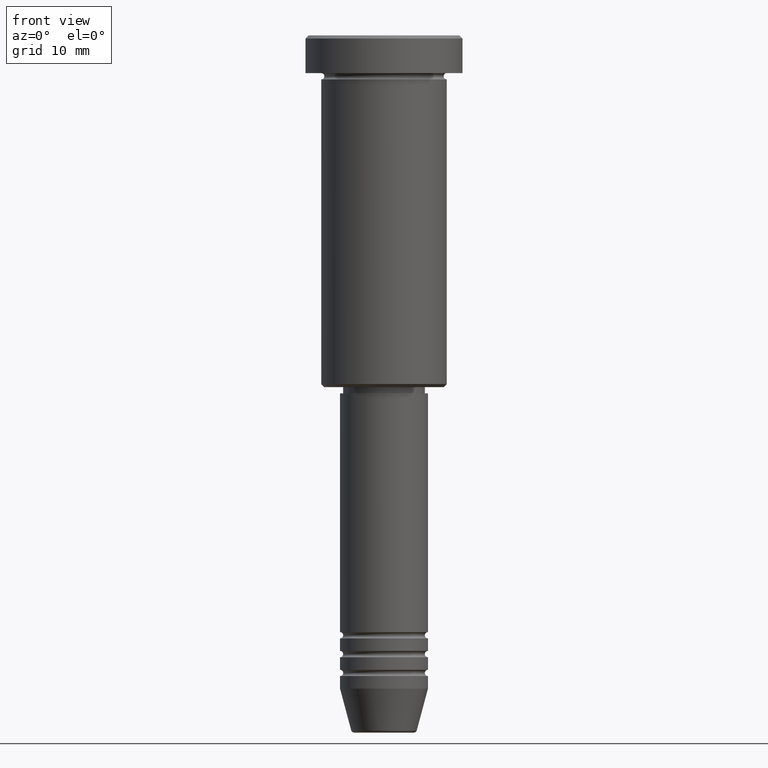
[diagram: clean part render]
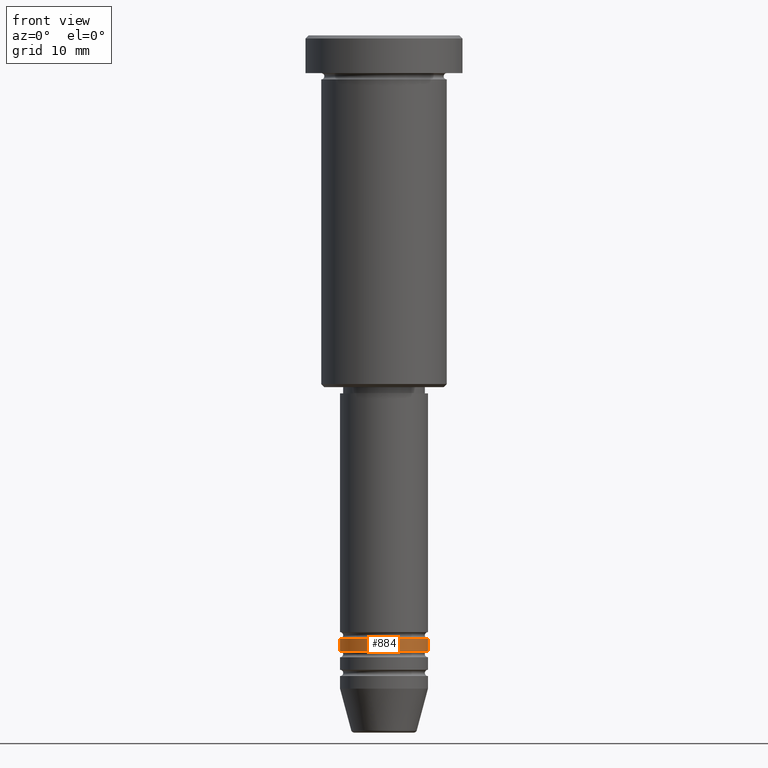
[diagram: same view with one face highlighted and labeled with its STEP entity id]
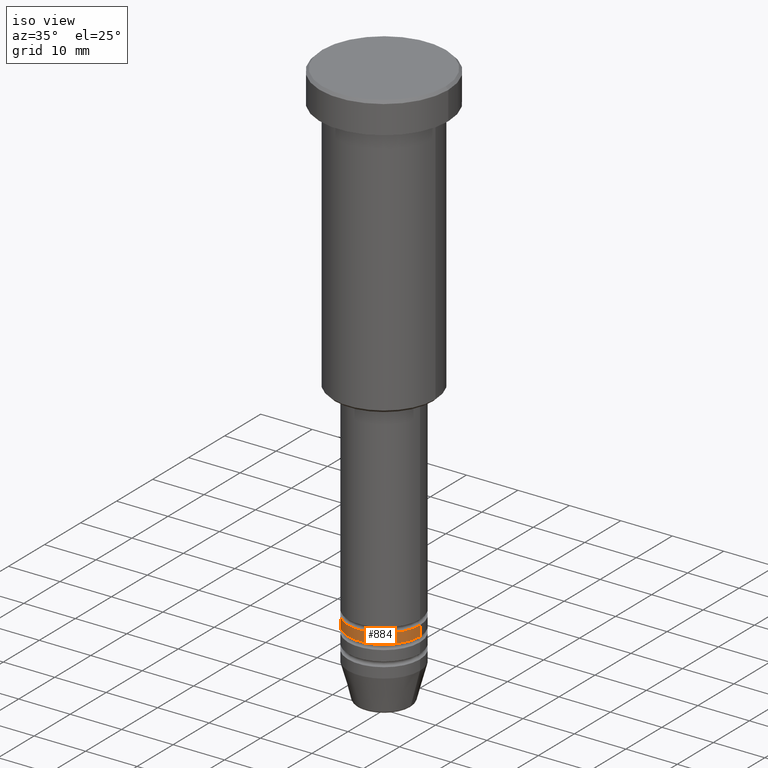
[diagram: same view with one face highlighted and labeled with its STEP entity id]
A machine part, front view. The second image highlights one B-rep face of the part: STEP entity #884.
A second angle (iso view) of the same face is appended — the face is thin or edge-on in the first view.
In plain terms, the highlighted cylindrical surface (partial cylindrical patch) has radius 7 mm, axis along (-0, -0, 1).
Its self-contained STEP definition (entity closure, byte-faithful):
#95 = VERTEX_POINT ( 'NONE', #611 ) ;
#116 = CARTESIAN_POINT ( 'NONE',  ( -7.000000000000000000, 8.572527594031473190E-16, -97.99999999999997158 ) ) ;
#162 = DIRECTION ( 'NONE',  ( 1.000000000000000000, 0.000000000000000000, 0.000000000000000000 ) ) ;
#171 = CARTESIAN_POINT ( 'NONE',  ( 7.000000000000000000, 0.000000000000000000, 0.000000000000000000 ) ) ;
#188 = ORIENTED_EDGE ( 'NONE', *, *, #900, .F. ) ;
#218 = VECTOR ( 'NONE', #1173, 1000.000000000000000 ) ;
#258 = VECTOR ( 'NONE', #977, 1000.000000000000000 ) ;
#297 = CIRCLE ( 'NONE', #1010, 7.000000000000000000 ) ;
#305 = ORIENTED_EDGE ( 'NONE', *, *, #484, .T. ) ;
#324 = DIRECTION ( 'NONE',  ( 1.000000000000000000, 0.000000000000000000, 0.000000000000000000 ) ) ;
#363 = EDGE_LOOP ( 'NONE', ( #188, #1051, #305, #653 ) ) ;
#447 = CARTESIAN_POINT ( 'NONE',  ( -7.000000000000000000, 8.572527594031473190E-16, 0.000000000000000000 ) ) ;
#461 = CARTESIAN_POINT ( 'NONE',  ( 7.000000000000000000, 0.000000000000000000, -97.99999999999997158 ) ) ;
#472 = AXIS2_PLACEMENT_3D ( 'NONE', #1019, #921, #840 ) ;
#484 = EDGE_CURVE ( 'NONE', #943, #499, #983, .T. ) ;
#490 = AXIS2_PLACEMENT_3D ( 'NONE', #967, #972, #162 ) ;
#499 = VERTEX_POINT ( 'NONE', #1047 ) ;
#531 = FACE_OUTER_BOUND ( 'NONE', #363, .T. ) ;
#611 = CARTESIAN_POINT ( 'NONE',  ( -7.000000000000000000, 8.572527594031473190E-16, -95.99999999999998579 ) ) ;
#645 = VERTEX_POINT ( 'NONE', #116 ) ;
#653 = ORIENTED_EDGE ( 'NONE', *, *, #1032, .F. ) ;
#727 = LINE ( 'NONE', #447, #218 ) ;
#760 = DIRECTION ( 'NONE',  ( -0.000000000000000000, -0.000000000000000000, 1.000000000000000000 ) ) ;
#761 = EDGE_CURVE ( 'NONE', #645, #943, #297, .T. ) ;
#840 = DIRECTION ( 'NONE',  ( 1.000000000000000000, 0.000000000000000000, 0.000000000000000000 ) ) ;
#883 = CYLINDRICAL_SURFACE ( 'NONE', #490, 7.000000000000000000 ) ;
#884 = ADVANCED_FACE ( 'NONE', ( #531 ), #883, .T. ) ;
#900 = EDGE_CURVE ( 'NONE', #645, #95, #727, .T. ) ;
#921 = DIRECTION ( 'NONE',  ( -0.000000000000000000, -0.000000000000000000, 1.000000000000000000 ) ) ;
#943 = VERTEX_POINT ( 'NONE', #461 ) ;
#967 = CARTESIAN_POINT ( 'NONE',  ( 0.000000000000000000, 0.000000000000000000, 0.000000000000000000 ) ) ;
#972 = DIRECTION ( 'NONE',  ( -0.000000000000000000, -0.000000000000000000, 1.000000000000000000 ) ) ;
#977 = DIRECTION ( 'NONE',  ( -0.000000000000000000, -0.000000000000000000, 1.000000000000000000 ) ) ;
#983 = LINE ( 'NONE', #171, #258 ) ;
#1010 = AXIS2_PLACEMENT_3D ( 'NONE', #1035, #760, #324 ) ;
#1019 = CARTESIAN_POINT ( 'NONE',  ( 0.000000000000000000, 0.000000000000000000, -95.99999999999998579 ) ) ;
#1032 = EDGE_CURVE ( 'NONE', #95, #499, #1075, .T. ) ;
#1035 = CARTESIAN_POINT ( 'NONE',  ( 0.000000000000000000, 0.000000000000000000, -97.99999999999997158 ) ) ;
#1047 = CARTESIAN_POINT ( 'NONE',  ( 7.000000000000000000, 0.000000000000000000, -95.99999999999998579 ) ) ;
#1051 = ORIENTED_EDGE ( 'NONE', *, *, #761, .T. ) ;
#1075 = CIRCLE ( 'NONE', #472, 7.000000000000000000 ) ;
#1173 = DIRECTION ( 'NONE',  ( -0.000000000000000000, -0.000000000000000000, 1.000000000000000000 ) ) ;